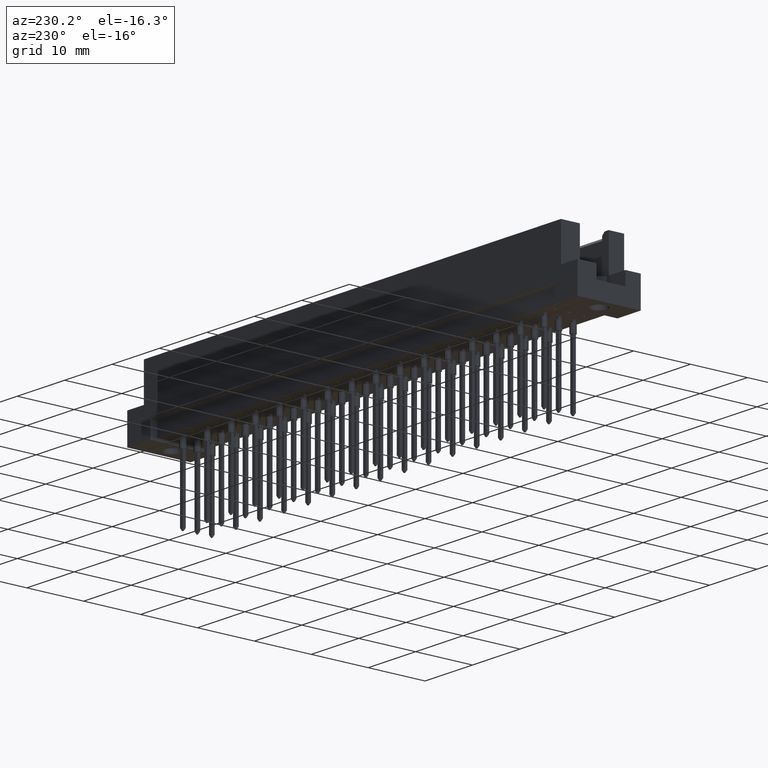
[diagram: clean part render]
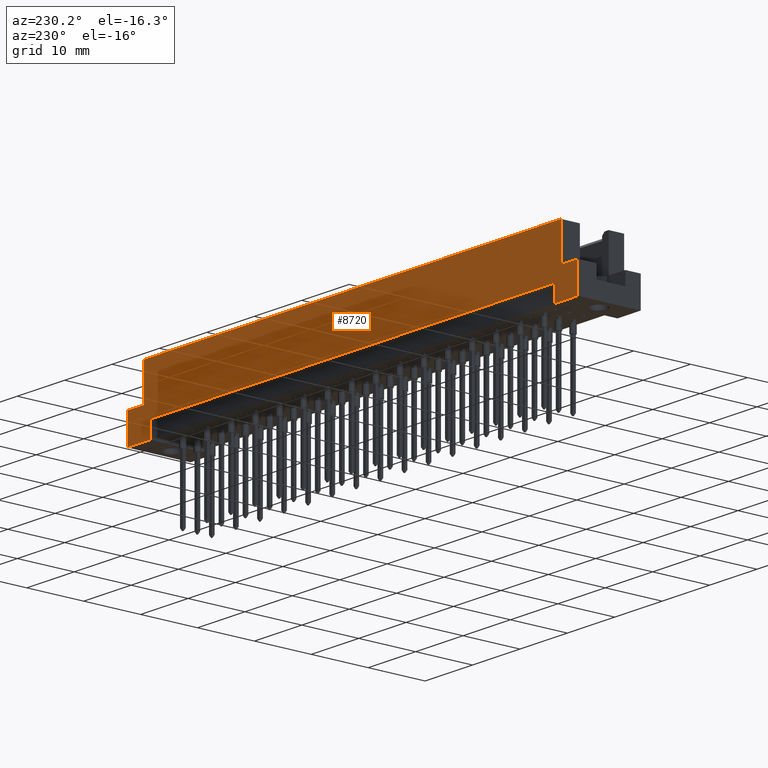
[diagram: same view with one face highlighted and labeled with its STEP entity id]
A machine part, auxiliary view. The second image highlights one B-rep face of the part: STEP entity #8720.
In plain terms, the highlighted planar face has unit normal (0, 1, 0).
Its self-contained STEP definition (entity closure, byte-faithful):
#399 = CARTESIAN_POINT ( 'NONE',  ( 47.50000000000000000, 11.09999999999999964, -1.163414459189985643E-14 ) ) ;
#613 = CARTESIAN_POINT ( 'NONE',  ( -47.50000000000000000, 11.09999999999999964, 0.0000000000000000000 ) ) ;
#636 = VERTEX_POINT ( 'NONE', #5831 ) ;
#700 = FACE_OUTER_BOUND ( 'NONE', #10341, .T. ) ;
#723 = VECTOR ( 'NONE', #7581, 1000.000000000000000 ) ;
#921 = CARTESIAN_POINT ( 'NONE',  ( 44.00000000000000000, 11.09999999999999432, 5.199999999999992184 ) ) ;
#948 = ORIENTED_EDGE ( 'NONE', *, *, #8339, .T. ) ;
#1742 = VERTEX_POINT ( 'NONE', #921 ) ;
#1798 = DIRECTION ( 'NONE',  ( -1.000000000000000000, -0.0000000000000000000, 1.224646799147353454E-16 ) ) ;
#1810 = ORIENTED_EDGE ( 'NONE', *, *, #16483, .T. ) ;
#1878 = CARTESIAN_POINT ( 'NONE',  ( -47.50000000000000000, 11.09999999999999964, 0.0000000000000000000 ) ) ;
#1998 = EDGE_CURVE ( 'NONE', #16710, #3792, #2469, .T. ) ;
#2059 = EDGE_CURVE ( 'NONE', #1742, #13103, #3068, .T. ) ;
#2177 = VERTEX_POINT ( 'NONE', #10853 ) ;
#2267 = CARTESIAN_POINT ( 'NONE',  ( -42.60000000000000142, 11.09999999999999964, 2.899999999999999911 ) ) ;
#2469 = LINE ( 'NONE', #5162, #15056 ) ;
#2692 = LINE ( 'NONE', #2870, #4061 ) ;
#2837 = VECTOR ( 'NONE', #15647, 1000.000000000000000 ) ;
#2870 = CARTESIAN_POINT ( 'NONE',  ( -47.50000000000000000, 11.09999999999999964, 0.0000000000000000000 ) ) ;
#3017 = ORIENTED_EDGE ( 'NONE', *, *, #1998, .T. ) ;
#3068 = LINE ( 'NONE', #14675, #16074 ) ;
#3115 = EDGE_CURVE ( 'NONE', #2177, #6926, #4318, .T. ) ;
#3237 = VECTOR ( 'NONE', #16009, 1000.000000000000000 ) ;
#3299 = CARTESIAN_POINT ( 'NONE',  ( -44.00000000000000000, 11.09999999999999432, 5.199999999999992184 ) ) ;
#3467 = CARTESIAN_POINT ( 'NONE',  ( -47.50000000000000000, 11.09999999999999964, 11.59999999999999964 ) ) ;
#3491 = EDGE_CURVE ( 'NONE', #8393, #9781, #4959, .T. ) ;
#3792 = VERTEX_POINT ( 'NONE', #12105 ) ;
#3867 = DIRECTION ( 'NONE',  ( -1.000000000000000000, 1.982541115402063729E-15, -0.0000000000000000000 ) ) ;
#4061 = VECTOR ( 'NONE', #9356, 1000.000000000000000 ) ;
#4296 = DIRECTION ( 'NONE',  ( -0.0000000000000000000, -0.0000000000000000000, 1.000000000000000000 ) ) ;
#4318 = LINE ( 'NONE', #13659, #7319 ) ;
#4665 = CARTESIAN_POINT ( 'NONE',  ( 47.50000000000000000, 11.09999999999999964, 5.199999999999992184 ) ) ;
#4842 = DIRECTION ( 'NONE',  ( -1.000000000000000000, -1.982541115402063729E-15, 0.0000000000000000000 ) ) ;
#4959 = LINE ( 'NONE', #6658, #3237 ) ;
#5056 = VECTOR ( 'NONE', #13390, 1000.000000000000000 ) ;
#5162 = CARTESIAN_POINT ( 'NONE',  ( -44.00000000000000000, 11.09999999999999432, 5.199999999999992184 ) ) ;
#5171 = CARTESIAN_POINT ( 'NONE',  ( -47.50000000000000000, 11.09999999999999964, 5.199999999999992184 ) ) ;
#5337 = LINE ( 'NONE', #399, #5056 ) ;
#5567 = ORIENTED_EDGE ( 'NONE', *, *, #2059, .F. ) ;
#5614 = VECTOR ( 'NONE', #3867, 1000.000000000000000 ) ;
#5790 = CARTESIAN_POINT ( 'NONE',  ( -47.50000000000000000, 11.09999999999999964, 5.199999999999992184 ) ) ;
#5831 = CARTESIAN_POINT ( 'NONE',  ( -42.60000000000000142, 11.09999999999999964, 0.0000000000000000000 ) ) ;
#5996 = DIRECTION ( 'NONE',  ( -0.0000000000000000000, 1.000000000000000000, 0.0000000000000000000 ) ) ;
#6658 = CARTESIAN_POINT ( 'NONE',  ( 42.60000000000000142, 11.09999999999999964, 2.899999999999999911 ) ) ;
#6696 = ORIENTED_EDGE ( 'NONE', *, *, #3115, .T. ) ;
#6742 = EDGE_CURVE ( 'NONE', #3792, #13103, #16698, .T. ) ;
#6926 = VERTEX_POINT ( 'NONE', #8111 ) ;
#7319 = VECTOR ( 'NONE', #1798, 1000.000000000000000 ) ;
#7530 = LINE ( 'NONE', #11406, #13428 ) ;
#7581 = DIRECTION ( 'NONE',  ( -0.0000000000000000000, -0.0000000000000000000, -1.000000000000000000 ) ) ;
#7598 = ORIENTED_EDGE ( 'NONE', *, *, #8169, .F. ) ;
#8111 = CARTESIAN_POINT ( 'NONE',  ( 42.60000000000000142, 11.09999999999999964, 0.0000000000000000000 ) ) ;
#8169 = EDGE_CURVE ( 'NONE', #16710, #12802, #11565, .T. ) ;
#8339 = EDGE_CURVE ( 'NONE', #9103, #2177, #5337, .T. ) ;
#8390 = VECTOR ( 'NONE', #12583, 1000.000000000000000 ) ;
#8393 = VERTEX_POINT ( 'NONE', #2267 ) ;
#8720 = ADVANCED_FACE ( 'NONE', ( #700 ), #15501, .T. ) ;
#9103 = VERTEX_POINT ( 'NONE', #4665 ) ;
#9356 = DIRECTION ( 'NONE',  ( 0.0000000000000000000, 0.0000000000000000000, 1.000000000000000000 ) ) ;
#9759 = EDGE_CURVE ( 'NONE', #8393, #636, #13709, .T. ) ;
#9781 = VERTEX_POINT ( 'NONE', #9972 ) ;
#9972 = CARTESIAN_POINT ( 'NONE',  ( 42.60000000000000142, 11.09999999999999964, 2.899999999999999911 ) ) ;
#10341 = EDGE_LOOP ( 'NONE', ( #13686, #15229, #13699, #11675, #1810, #7598, #3017, #15788, #5567, #10851, #948, #6696 ) ) ;
#10851 = ORIENTED_EDGE ( 'NONE', *, *, #12440, .F. ) ;
#10853 = CARTESIAN_POINT ( 'NONE',  ( 47.50000000000000000, 11.09999999999999964, -1.163414459189985643E-14 ) ) ;
#11406 = CARTESIAN_POINT ( 'NONE',  ( 47.50000000000000000, 11.09999999999999964, 5.199999999999992184 ) ) ;
#11565 = LINE ( 'NONE', #5171, #5614 ) ;
#11675 = ORIENTED_EDGE ( 'NONE', *, *, #12838, .T. ) ;
#12105 = CARTESIAN_POINT ( 'NONE',  ( -44.00000000000000000, 11.09999999999999432, 11.59999999999999254 ) ) ;
#12419 = LINE ( 'NONE', #16413, #723 ) ;
#12439 = DIRECTION ( 'NONE',  ( -1.000000000000000000, -0.0000000000000000000, 1.224646799147353454E-16 ) ) ;
#12440 = EDGE_CURVE ( 'NONE', #9103, #1742, #7530, .T. ) ;
#12583 = DIRECTION ( 'NONE',  ( -0.0000000000000000000, -0.0000000000000000000, -1.000000000000000000 ) ) ;
#12603 = VECTOR ( 'NONE', #12439, 1000.000000000000000 ) ;
#12802 = VERTEX_POINT ( 'NONE', #5790 ) ;
#12838 = EDGE_CURVE ( 'NONE', #636, #16637, #13741, .T. ) ;
#12879 = DIRECTION ( 'NONE',  ( -0.0000000000000000000, -0.0000000000000000000, 1.000000000000000000 ) ) ;
#13103 = VERTEX_POINT ( 'NONE', #15801 ) ;
#13390 = DIRECTION ( 'NONE',  ( -0.0000000000000000000, -0.0000000000000000000, -1.000000000000000000 ) ) ;
#13428 = VECTOR ( 'NONE', #4842, 1000.000000000000000 ) ;
#13555 = EDGE_CURVE ( 'NONE', #9781, #6926, #12419, .T. ) ;
#13659 = CARTESIAN_POINT ( 'NONE',  ( -47.50000000000000000, 11.09999999999999964, 0.0000000000000000000 ) ) ;
#13686 = ORIENTED_EDGE ( 'NONE', *, *, #13555, .F. ) ;
#13699 = ORIENTED_EDGE ( 'NONE', *, *, #9759, .T. ) ;
#13709 = LINE ( 'NONE', #16490, #8390 ) ;
#13741 = LINE ( 'NONE', #1878, #12603 ) ;
#14195 = DIRECTION ( 'NONE',  ( 0.0000000000000000000, -0.0000000000000000000, 1.000000000000000000 ) ) ;
#14675 = CARTESIAN_POINT ( 'NONE',  ( 44.00000000000000000, 11.09999999999999432, 5.199999999999992184 ) ) ;
#15056 = VECTOR ( 'NONE', #12879, 1000.000000000000000 ) ;
#15229 = ORIENTED_EDGE ( 'NONE', *, *, #3491, .F. ) ;
#15501 = PLANE ( 'NONE',  #16661 ) ;
#15647 = DIRECTION ( 'NONE',  ( 1.000000000000000000, 0.0000000000000000000, -1.278217298088173739E-16 ) ) ;
#15788 = ORIENTED_EDGE ( 'NONE', *, *, #6742, .T. ) ;
#15801 = CARTESIAN_POINT ( 'NONE',  ( 44.00000000000000000, 11.09999999999999432, 11.59999999999999254 ) ) ;
#16009 = DIRECTION ( 'NONE',  ( 1.000000000000000000, -0.0000000000000000000, -0.0000000000000000000 ) ) ;
#16074 = VECTOR ( 'NONE', #4296, 1000.000000000000000 ) ;
#16413 = CARTESIAN_POINT ( 'NONE',  ( 42.60000000000000142, 11.09999999999999964, 0.5000000000000000000 ) ) ;
#16483 = EDGE_CURVE ( 'NONE', #16637, #12802, #2692, .T. ) ;
#16490 = CARTESIAN_POINT ( 'NONE',  ( -42.60000000000000142, 11.09999999999999964, 0.5000000000000000000 ) ) ;
#16637 = VERTEX_POINT ( 'NONE', #613 ) ;
#16661 = AXIS2_PLACEMENT_3D ( 'NONE', #3467, #5996, #14195 ) ;
#16698 = LINE ( 'NONE', #16781, #2837 ) ;
#16710 = VERTEX_POINT ( 'NONE', #3299 ) ;
#16781 = CARTESIAN_POINT ( 'NONE',  ( -47.50000000000000000, 11.09999999999999964, 11.59999999999999964 ) ) ;